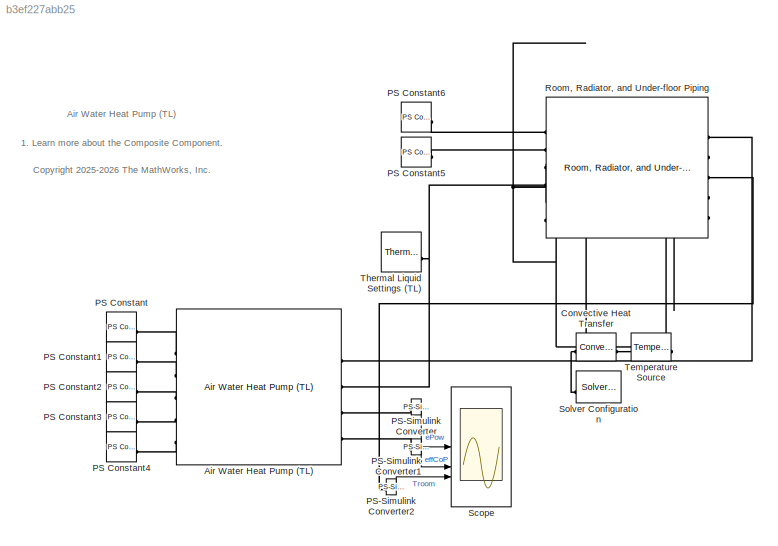
MODEL slx_b3ef227abb25
KIND model
CONFIG AbsTol = 1e-3
CONFIG FixedStep = 0.5
CONFIG MaxStep = 1
CONFIG PreLoadFcn = WallModelParams
CONFIG SolverName = daessc
CONFIG StopTime = 1200
BLOCK [Reference] Air Water Heat Pump (TL)  REF=AirWaterHeatPumpTL/Air Water Heat Pump (TL)
  SourceBlock = AirWaterHeatPumpTL/Air Water Heat Pump (TL)
BLOCK [Reference] Convective Heat Transfer  REF=fl_lib/Thermal/Thermal Elements/Convective Heat
Transfer
  SourceBlock = fl_lib/Thermal/Thermal Elements/Convective Heat\nTransfer
  SourceType = Convective Heat\nTransfer
BLOCK [Reference] PS Constant  REF=fl_lib/Physical Signals/Sources/PS Constant
  SourceBlock = fl_lib/Physical Signals/Sources/PS Constant
  SourceType = PS Constant
BLOCK [Reference] PS Constant1  REF=fl_lib/Physical Signals/Sources/PS Constant
  SourceBlock = fl_lib/Physical Signals/Sources/PS Constant
  SourceType = PS Constant
BLOCK [Reference] PS Constant2  REF=fl_lib/Physical Signals/Sources/PS Constant
  SourceBlock = fl_lib/Physical Signals/Sources/PS Constant
  SourceType = PS Constant
BLOCK [Reference] PS Constant3  REF=fl_lib/Physical Signals/Sources/PS Constant
  SourceBlock = fl_lib/Physical Signals/Sources/PS Constant
  SourceType = PS Constant
BLOCK [Reference] PS Constant4  REF=fl_lib/Physical Signals/Sources/PS Constant
  SourceBlock = fl_lib/Physical Signals/Sources/PS Constant
  SourceType = PS Constant
BLOCK [Reference] PS Constant5  REF=fl_lib/Physical Signals/Sources/PS Constant
  SourceBlock = fl_lib/Physical Signals/Sources/PS Constant
  SourceType = PS Constant
BLOCK [Reference] PS Constant6  REF=fl_lib/Physical Signals/Sources/PS Constant
  SourceBlock = fl_lib/Physical Signals/Sources/PS Constant
  SourceType = PS Constant
BLOCK [Reference] PS-Simulink Converter  REF=nesl_utility/PS-Simulink
Converter
  SourceBlock = nesl_utility/PS-Simulink\nConverter
  SourceType = PS-Simulink\nConverter
BLOCK [Reference] PS-Simulink Converter1  REF=nesl_utility/PS-Simulink
Converter
  SourceBlock = nesl_utility/PS-Simulink\nConverter
  SourceType = PS-Simulink\nConverter
BLOCK [Reference] PS-Simulink Converter2  REF=nesl_utility/PS-Simulink
Converter
  SourceBlock = nesl_utility/PS-Simulink\nConverter
  SourceType = PS-Simulink\nConverter
BLOCK [Reference] Room, Radiator, and Under-floor Piping  REF=RoomWithRadiatorAndUFP/Room, Radiator, and Under-floor Piping
  SourceBlock = RoomWithRadiatorAndUFP/Room, Radiator, and Under-floor Piping
BLOCK [Scope] Scope
  ActiveDisplayYMaximum = 4.96337013765934
  ActiveDisplayYMinimum = -0.55148557085103767
  Floating = off
  GraphicalSettings = {"Style":{"BackgroundColor":[0.12941176470588237,0.12941176470588237,0.12941176470588237],"AxesColor":[0.07058823529411765,0.07058823529411765,0.07058823529411765],"LabelsColor":[0.8509803921568627,0.8509803921568627,0.8509803921568627],"PreserveColors":false,"Visible":[true,true,true],"LineStyle":["-","-","-"],"LineWidth":[1.5,1.5,1.5],"BarWidth":[0.9,0.9,0.9],"LineColor":["auto","auto","auto"],"...<+2859ch>
  LayoutDimensionsString = [1,3]
  MultipleDisplayCache = [{"MaxYLimMag":4.96337013765934,"MaxYLimReal":4.96337013765934,"MinYLimMag":0,"MinYLimReal":-0.55148557085103767,"PlotAsMagnitudePhase":false,"ShowGrid":true,"ShowLegend":false,"Title":"%<SignalLabel>","YLabel":""},{"MaxYLimMag":5.467497337352,"MaxYLimReal":5.467497337352,"MinYLimMag":0,"MinYLimReal":-0.60749970413661325,"PlotAsMagnitudePhase":false,"ShowGrid":true,"ShowLegend":false,"Title":"%<Si...<+254ch>
  NumInputPorts = 3
  ScopeFrameLocation = window
  WasSavedAsWebScope = on
  WindowPosition = [598.000000,352.000000,723.000000,317.000000,]
BLOCK [Reference] Solver Configuration  REF=nesl_utility/Solver
Configuration
  SourceBlock = nesl_utility/Solver\nConfiguration
  SourceType = Solver\nConfiguration
BLOCK [Reference] Temperature Source  REF=fl_lib/Thermal/Thermal Sources/Temperature Source
  NameLocation = top
  SourceBlock = fl_lib/Thermal/Thermal Sources/Temperature Source
  SourceType = Temperature Source
BLOCK [Reference] Thermal Liquid Settings (TL)  REF=fl_lib/Thermal Liquid/Utilities/Thermal Liquid
Settings (TL)
  SourceBlock = fl_lib/Thermal Liquid/Utilities/Thermal Liquid\nSettings (TL)
  SourceType = Thermal Liquid\nSettings (TL)
ANNOTATION (root): 1. Learn more about the Composite Component.
ANNOTATION (root): Air Water Heat Pump (TL)
ANNOTATION (root): <copyright redacted>
LINE PS-Simulink Converter1:1 -> Scope:2
LINE PS-Simulink Converter2:1 -> Scope:3
LINE PS-Simulink Converter:1 -> Scope:1
PLINE Air Water Heat Pump (TL):LConn1 -- PS Constant:RConn1
PLINE Air Water Heat Pump (TL):LConn2 -- PS Constant1:RConn1
PLINE Air Water Heat Pump (TL):LConn3 -- PS Constant2:RConn1
PLINE Air Water Heat Pump (TL):LConn4 -- PS Constant3:RConn1
PLINE Air Water Heat Pump (TL):LConn5 -- PS Constant4:RConn1
PLINE Air Water Heat Pump (TL):RConn1 -- Room, Radiator, and Under-floor Piping:RConn1
PNET net1: Air Water Heat Pump (TL):RConn2 -- Room, Radiator, and Under-floor Piping:LConn4 -- Thermal Liquid Settings (TL):RConn1
PLINE Air Water Heat Pump (TL):RConn3 -- PS-Simulink Converter:LConn1
PLINE Air Water Heat Pump (TL):RConn4 -- PS-Simulink Converter1:LConn1
PNET net2: Convective Heat Transfer:LConn1 -- Room, Radiator, and Under-floor Piping:LConn3 -- Room, Radiator, and Under-floor Piping:LConn5 -- Room, Radiator, and Under-floor Piping:LConn6 -- Room, Radiator, and Under-floor Piping:RConn2 -- Room, Radiator, and Under-floor Piping:RConn4 -- Room, Radiator, and Under-floor Piping:RConn5 -- Solver Configuration:RConn1
PLINE Convective Heat Transfer:RConn1 -- Temperature Source:LConn1
PLINE PS Constant5:RConn1 -- Room, Radiator, and Under-floor Piping:LConn2
PLINE PS Constant6:RConn1 -- Room, Radiator, and Under-floor Piping:LConn1
PLINE PS-Simulink Converter2:LConn1 -- Room, Radiator, and Under-floor Piping:RConn3
note: PNET lines group multi-terminal physical nets as a canonical sorted terminal list (undirected conserving connections); 2-terminal nets keep the pairwise PLINE form
